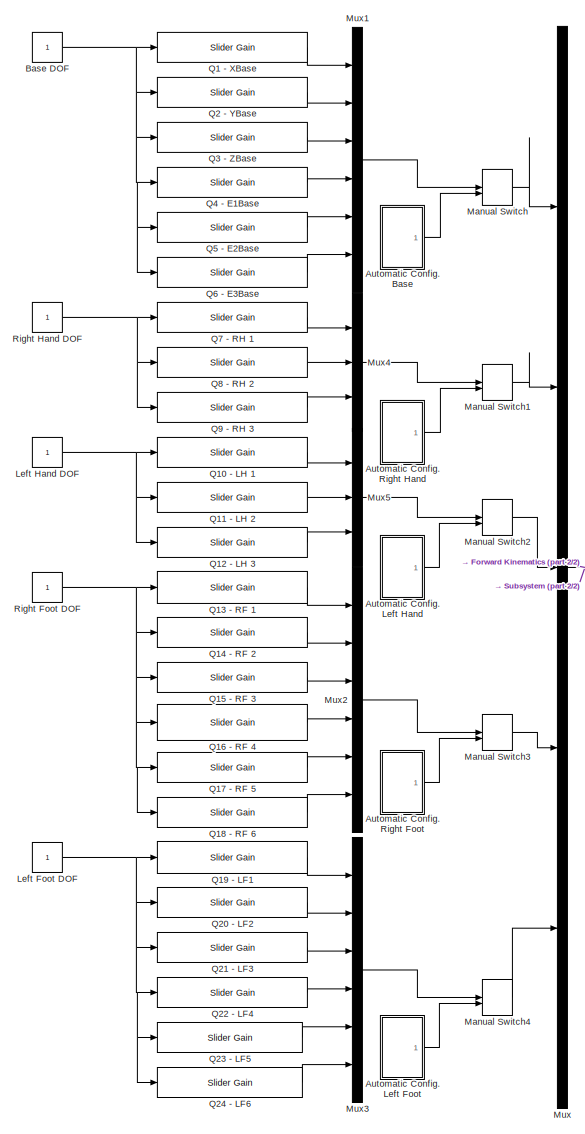
[diagram: root canvas - part 1/2, left side, full height]
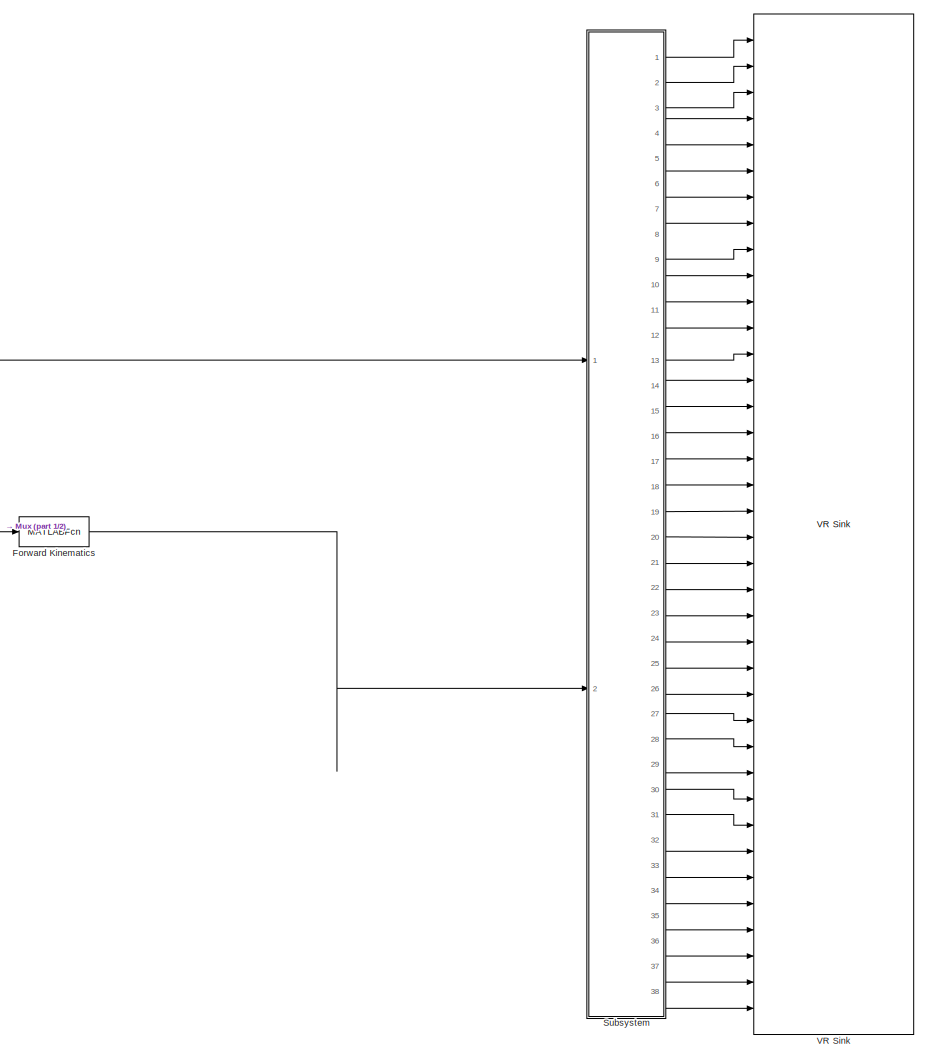
[diagram: root canvas - part 2/2, right side, full height]
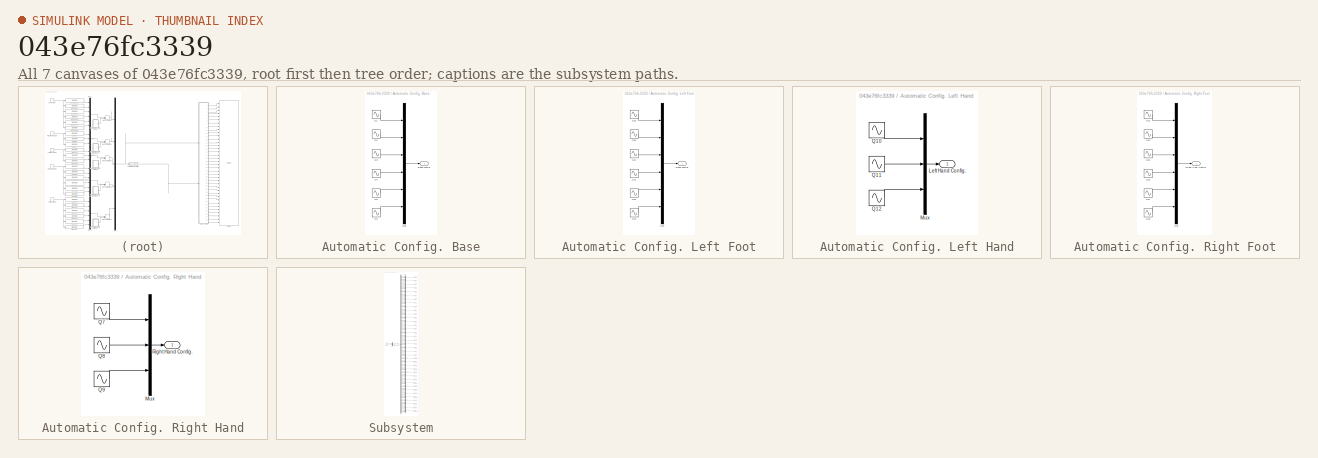
[diagram: thumbnail index - all 7 canvases of the model, root first then tree order]
MODEL slx_043e76fc3339
KIND model
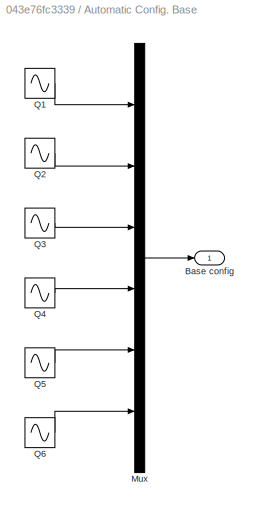
BLOCK [SubSystem] Automatic Config. Base
  FunctionWithSeparateData = off
  MaskHideContents = off
  MinAlgLoopOccurrences = off
  Opaque = off
  Ports = [0, 1]
  PropExecContextOutsideSubsystem = off
  RTWSystemCode = Auto
  RequestExecContextInheritance = off
BLOCK [Outport] Automatic Config. Base/Base config
  IconDisplay = Port number
BLOCK [Mux] Automatic Config. Base/Mux
  DisplayOption = bar
  Inputs = 6
  Ports = [6, 1]
BLOCK [Sin] Automatic Config. Base/Q1
  Amplitude = 3.14
  Frequency = .1
  Ports = [0, 1]
  SampleTime = 0
BLOCK [Sin] Automatic Config. Base/Q2
  Amplitude = 3.14
  Frequency = .4
  Ports = [0, 1]
  SampleTime = 0
BLOCK [Sin] Automatic Config. Base/Q3
  Amplitude = 3.14
  Frequency = .8
  Ports = [0, 1]
  SampleTime = 0
BLOCK [Sin] Automatic Config. Base/Q4
  Amplitude = 3.14
  Frequency = .1
  Ports = [0, 1]
  SampleTime = 0
BLOCK [Sin] Automatic Config. Base/Q5
  Amplitude = 3.14
  Frequency = .2
  Ports = [0, 1]
  SampleTime = 0
BLOCK [Sin] Automatic Config. Base/Q6
  Amplitude = 3.14
  Frequency = .6
  Ports = [0, 1]
  SampleTime = 0
BLOCK [SubSystem] Automatic Config. Left Foot
  FunctionWithSeparateData = off
  MaskHideContents = off
  MinAlgLoopOccurrences = off
  Opaque = off
  Ports = [0, 1]
  PropExecContextOutsideSubsystem = off
  RTWSystemCode = Auto
  RequestExecContextInheritance = off
BLOCK [Outport] Automatic Config. Left Foot/Base config
  IconDisplay = Port number
BLOCK [Mux] Automatic Config. Left Foot/Mux
  DisplayOption = bar
  Inputs = 6
  Ports = [6, 1]
BLOCK [Sin] Automatic Config. Left Foot/Q19
  Amplitude = 6.28
  Ports = [0, 1]
  SampleTime = 0
BLOCK [Sin] Automatic Config. Left Foot/Q20
  Amplitude = 6.28
  Frequency = .1
  Ports = [0, 1]
  SampleTime = 0
BLOCK [Sin] Automatic Config. Left Foot/Q21
  Amplitude = 6.28
  Frequency = .5
  Ports = [0, 1]
  SampleTime = 0
BLOCK [Sin] Automatic Config. Left Foot/Q22
  Amplitude = 6.28
  Frequency = .5
  Ports = [0, 1]
  SampleTime = 0
BLOCK [Sin] Automatic Config. Left Foot/Q23
  Amplitude = 6.28
  Ports = [0, 1]
  SampleTime = 0
BLOCK [Sin] Automatic Config. Left Foot/Q24
  Amplitude = 6.28
  Frequency = .1
  Ports = [0, 1]
  SampleTime = 0
BLOCK [SubSystem] Automatic Config. Left Hand
  FunctionWithSeparateData = off
  MaskHideContents = off
  MinAlgLoopOccurrences = off
  Opaque = off
  Ports = [0, 1]
  PropExecContextOutsideSubsystem = off
  RTWSystemCode = Auto
  RequestExecContextInheritance = off
BLOCK [Outport] Automatic Config. Left Hand/Left Hand Config.
  IconDisplay = Port number
BLOCK [Mux] Automatic Config. Left Hand/Mux
  DisplayOption = bar
  Inputs = 3
  Ports = [3, 1]
BLOCK [Sin] Automatic Config. Left Hand/Q10
  Amplitude = 6.28
  Ports = [0, 1]
  SampleTime = 0
BLOCK [Sin] Automatic Config. Left Hand/Q11
  Amplitude = 6.28
  Frequency = .5
  Ports = [0, 1]
  SampleTime = 0
BLOCK [Sin] Automatic Config. Left Hand/Q12
  Amplitude = 6.28
  Frequency = .1
  Ports = [0, 1]
  SampleTime = 0
BLOCK [SubSystem] Automatic Config. Right Foot
  FunctionWithSeparateData = off
  MaskHideContents = off
  MinAlgLoopOccurrences = off
  Opaque = off
  Ports = [0, 1]
  PropExecContextOutsideSubsystem = off
  RTWSystemCode = Auto
  RequestExecContextInheritance = off
BLOCK [Mux] Automatic Config. Right Foot/Mux
  DisplayOption = bar
  Inputs = 6
  Ports = [6, 1]
BLOCK [Sin] Automatic Config. Right Foot/Q13
  Amplitude = 6.28
  Frequency = .1
  Ports = [0, 1]
  SampleTime = 0
BLOCK [Sin] Automatic Config. Right Foot/Q14
  Amplitude = 6.28
  Frequency = .5
  Ports = [0, 1]
  SampleTime = 0
BLOCK [Sin] Automatic Config. Right Foot/Q15
  Amplitude = 6.28
  Ports = [0, 1]
  SampleTime = 0
BLOCK [Sin] Automatic Config. Right Foot/Q16
  Amplitude = 6.28
  Frequency = .1
  Ports = [0, 1]
  SampleTime = 0
BLOCK [Sin] Automatic Config. Right Foot/Q17
  Amplitude = 6.28
  Frequency = .5
  Ports = [0, 1]
  SampleTime = 0
BLOCK [Sin] Automatic Config. Right Foot/Q18
  Amplitude = 6.28
  Ports = [0, 1]
  SampleTime = 0
BLOCK [Outport] Automatic Config. Right Foot/Right Foot Config
  IconDisplay = Port number
BLOCK [SubSystem] Automatic Config. Right Hand
  FunctionWithSeparateData = off
  MaskHideContents = off
  MinAlgLoopOccurrences = off
  Opaque = off
  Ports = [0, 1]
  PropExecContextOutsideSubsystem = off
  RTWSystemCode = Auto
  RequestExecContextInheritance = off
BLOCK [Mux] Automatic Config. Right Hand/Mux
  DisplayOption = bar
  Inputs = 3
  Ports = [3, 1]
BLOCK [Sin] Automatic Config. Right Hand/Q7
  Amplitude = 6.28
  Frequency = .1
  Ports = [0, 1]
  SampleTime = 0
BLOCK [Sin] Automatic Config. Right Hand/Q8
  Amplitude = 6.28
  Frequency = .5
  Ports = [0, 1]
  SampleTime = 0
BLOCK [Sin] Automatic Config. Right Hand/Q9
  Amplitude = 6.28
  Ports = [0, 1]
  SampleTime = 0
BLOCK [Outport] Automatic Config. Right Hand/Right Hand Config.
  IconDisplay = Port number
BLOCK [Constant] Base DOF
BLOCK [MATLABFcn] Forward Kinematics
  MATLABFcn = ToSimulink_Bioloid_FK_ST(u)
  Ports = [1, 1]
BLOCK [Constant] Left Foot DOF
BLOCK [Constant] Left Hand DOF
BLOCK [ManualSwitch] Manual Switch
  CurrentSetting = 0
BLOCK [ManualSwitch] Manual Switch1
  CurrentSetting = 0
BLOCK [ManualSwitch] Manual Switch2
  CurrentSetting = 0
BLOCK [ManualSwitch] Manual Switch3
  CurrentSetting = 0
BLOCK [ManualSwitch] Manual Switch4
  CurrentSetting = 0
BLOCK [Mux] Mux
  DisplayOption = bar
  Inputs = 5
  Ports = [5, 1]
BLOCK [Mux] Mux1
  DisplayOption = bar
  Inputs = 6
  Ports = [6, 1]
BLOCK [Mux] Mux2
  DisplayOption = bar
  Inputs = 6
  Ports = [6, 1]
BLOCK [Mux] Mux3
  DisplayOption = bar
  Inputs = 6
  Ports = [6, 1]
BLOCK [Mux] Mux4
  DisplayOption = bar
  Inputs = 3
  Ports = [3, 1]
BLOCK [Mux] Mux5
  DisplayOption = bar
  Inputs = 3
  Ports = [3, 1]
BLOCK [Reference] Q1 - XBase   REF=simulink/Math
Operations/Slider
Gain
  Ports = [1, 1]
  SourceBlock = simulink/Math\nOperations/Slider\nGain
  SourceType = Slider Gain
  gain = 0
  high = 6.28
  low = -6.28
BLOCK [Reference] Q10 - LH 1  REF=simulink/Math
Operations/Slider
Gain
  Ports = [1, 1]
  SourceBlock = simulink/Math\nOperations/Slider\nGain
  SourceType = Slider Gain
  gain = 0
  high = 6.28
  low = -6.28
BLOCK [Reference] Q11 - LH 2   REF=simulink/Math
Operations/Slider
Gain
  Ports = [1, 1]
  SourceBlock = simulink/Math\nOperations/Slider\nGain
  SourceType = Slider Gain
  gain = 0
  high = 6.28
  low = -6.28
BLOCK [Reference] Q12 - LH 3  REF=simulink/Math
Operations/Slider
Gain
  Ports = [1, 1]
  SourceBlock = simulink/Math\nOperations/Slider\nGain
  SourceType = Slider Gain
  gain = 0
  high = 6.28
  low = -6.28
BLOCK [Reference] Q13 - RF 1  REF=simulink/Math
Operations/Slider
Gain
  Ports = [1, 1]
  SourceBlock = simulink/Math\nOperations/Slider\nGain
  SourceType = Slider Gain
  gain = 0
  high = 6.28
  low = -6.28
BLOCK [Reference] Q14 - RF 2  REF=simulink/Math
Operations/Slider
Gain
  Ports = [1, 1]
  SourceBlock = simulink/Math\nOperations/Slider\nGain
  SourceType = Slider Gain
  gain = 0
  high = 6.28
  low = -6.28
BLOCK [Reference] Q15 - RF 3  REF=simulink/Math
Operations/Slider
Gain
  Ports = [1, 1]
  SourceBlock = simulink/Math\nOperations/Slider\nGain
  SourceType = Slider Gain
  gain = 0
  high = 6.28
  low = -6.28
BLOCK [Reference] Q16 - RF 4  REF=simulink/Math
Operations/Slider
Gain
  Ports = [1, 1]
  SourceBlock = simulink/Math\nOperations/Slider\nGain
  SourceType = Slider Gain
  gain = 0
  high = 6.28
  low = -6.28
BLOCK [Reference] Q17 - RF 5  REF=simulink/Math
Operations/Slider
Gain
  Ports = [1, 1]
  SourceBlock = simulink/Math\nOperations/Slider\nGain
  SourceType = Slider Gain
  gain = 0
  high = 6.28
  low = -6.28
BLOCK [Reference] Q18 - RF 6  REF=simulink/Math
Operations/Slider
Gain
  Ports = [1, 1]
  SourceBlock = simulink/Math\nOperations/Slider\nGain
  SourceType = Slider Gain
  gain = 0
  high = 6.28
  low = -6.28
BLOCK [Reference] Q19 - LF1  REF=simulink/Math
Operations/Slider
Gain
  Ports = [1, 1]
  SourceBlock = simulink/Math\nOperations/Slider\nGain
  SourceType = Slider Gain
  gain = 0
  high = 6.28
  low = -6.28
BLOCK [Reference] Q2 - YBase   REF=simulink/Math
Operations/Slider
Gain
  Ports = [1, 1]
  SourceBlock = simulink/Math\nOperations/Slider\nGain
  SourceType = Slider Gain
  gain = 0
  high = 6.28
  low = -6.28
BLOCK [Reference] Q20 - LF2  REF=simulink/Math
Operations/Slider
Gain
  Ports = [1, 1]
  SourceBlock = simulink/Math\nOperations/Slider\nGain
  SourceType = Slider Gain
  gain = 0
  high = 6.28
  low = -6.28
BLOCK [Reference] Q21 - LF3  REF=simulink/Math
Operations/Slider
Gain
  Ports = [1, 1]
  SourceBlock = simulink/Math\nOperations/Slider\nGain
  SourceType = Slider Gain
  gain = 0
  high = 6.28
  low = -6.28
BLOCK [Reference] Q22 - LF4  REF=simulink/Math
Operations/Slider
Gain
  Ports = [1, 1]
  SourceBlock = simulink/Math\nOperations/Slider\nGain
  SourceType = Slider Gain
  gain = 0
  high = 6.28
  low = -6.28
BLOCK [Reference] Q23 - LF5  REF=simulink/Math
Operations/Slider
Gain
  Ports = [1, 1]
  SourceBlock = simulink/Math\nOperations/Slider\nGain
  SourceType = Slider Gain
  gain = 0
  high = 6.28
  low = -6.28
BLOCK [Reference] Q24 - LF6  REF=simulink/Math
Operations/Slider
Gain
  Ports = [1, 1]
  SourceBlock = simulink/Math\nOperations/Slider\nGain
  SourceType = Slider Gain
  gain = 0
  high = 6.28
  low = -6.28
BLOCK [Reference] Q3 - ZBase   REF=simulink/Math
Operations/Slider
Gain
  Ports = [1, 1]
  SourceBlock = simulink/Math\nOperations/Slider\nGain
  SourceType = Slider Gain
  gain = 0
  high = 6.28
  low = -6.28
BLOCK [Reference] Q4 - E1Base   REF=simulink/Math
Operations/Slider
Gain
  Ports = [1, 1]
  SourceBlock = simulink/Math\nOperations/Slider\nGain
  SourceType = Slider Gain
  gain = 0
  high = 6.28
  low = -6.28
BLOCK [Reference] Q5 - E2Base   REF=simulink/Math
Operations/Slider
Gain
  Ports = [1, 1]
  SourceBlock = simulink/Math\nOperations/Slider\nGain
  SourceType = Slider Gain
  gain = 0
  high = 6.28
  low = -6.28
BLOCK [Reference] Q6 - E3Base  REF=simulink/Math
Operations/Slider
Gain
  Ports = [1, 1]
  SourceBlock = simulink/Math\nOperations/Slider\nGain
  SourceType = Slider Gain
  gain = 0
  high = 6.28
  low = -6.28
BLOCK [Reference] Q7 - RH 1  REF=simulink/Math
Operations/Slider
Gain
  Ports = [1, 1]
  SourceBlock = simulink/Math\nOperations/Slider\nGain
  SourceType = Slider Gain
  gain = 0
  high = 6.28
  low = -6.28
BLOCK [Reference] Q8 - RH 2  REF=simulink/Math
Operations/Slider
Gain
  Ports = [1, 1]
  SourceBlock = simulink/Math\nOperations/Slider\nGain
  SourceType = Slider Gain
  gain = 0
  high = 6.28
  low = -6.28
BLOCK [Reference] Q9 - RH 3   REF=simulink/Math
Operations/Slider
Gain
  Ports = [1, 1]
  SourceBlock = simulink/Math\nOperations/Slider\nGain
  SourceType = Slider Gain
  gain = 0
  high = 6.28
  low = -6.28
BLOCK [Constant] Right Foot DOF
BLOCK [Constant] Right Hand DOF
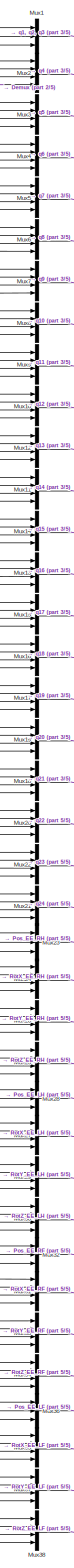
[diagram: Subsystem - part 1/5, center side, full height]
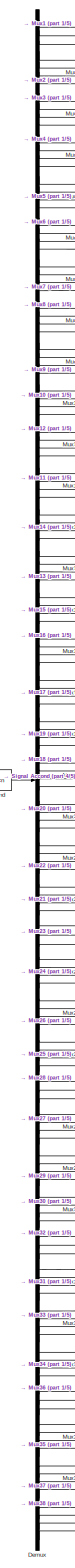
[diagram: Subsystem - part 2/5, center side, full height]
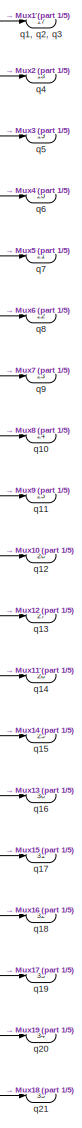
[diagram: Subsystem - part 3/5, top right region]
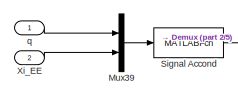
[diagram: Subsystem - part 4/5, middle left region]
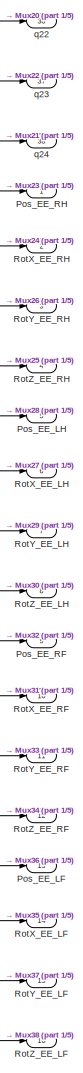
[diagram: Subsystem - part 5/5, bottom right region]
BLOCK [SubSystem] Subsystem
  FunctionWithSeparateData = off
  MaskHideContents = off
  MinAlgLoopOccurrences = off
  Opaque = off
  Ports = [2, 38]
  PropExecContextOutsideSubsystem = off
  RTWSystemCode = Auto
  RequestExecContextInheritance = off
BLOCK [Demux] Subsystem/Demux
  DisplayOption = bar
  Outputs = 147
  Ports = [1, 147]
BLOCK [Mux] Subsystem/Mux1
  DisplayOption = bar
  Inputs = 3
  Ports = [3, 1]
BLOCK [Mux] Subsystem/Mux10
  DisplayOption = bar
  Ports = [4, 1]
BLOCK [Mux] Subsystem/Mux11
  DisplayOption = bar
  Ports = [4, 1]
BLOCK [Mux] Subsystem/Mux12
  DisplayOption = bar
  Ports = [4, 1]
BLOCK [Mux] Subsystem/Mux13
  DisplayOption = bar
  Ports = [4, 1]
BLOCK [Mux] Subsystem/Mux14
  DisplayOption = bar
  Ports = [4, 1]
BLOCK [Mux] Subsystem/Mux15
  DisplayOption = bar
  Ports = [4, 1]
BLOCK [Mux] Subsystem/Mux16
  DisplayOption = bar
  Ports = [4, 1]
BLOCK [Mux] Subsystem/Mux17
  DisplayOption = bar
  Ports = [4, 1]
BLOCK [Mux] Subsystem/Mux18
  DisplayOption = bar
  Ports = [4, 1]
BLOCK [Mux] Subsystem/Mux19
  DisplayOption = bar
  Ports = [4, 1]
BLOCK [Mux] Subsystem/Mux2
  DisplayOption = bar
  Ports = [4, 1]
BLOCK [Mux] Subsystem/Mux20
  DisplayOption = bar
  Ports = [4, 1]
BLOCK [Mux] Subsystem/Mux21
  DisplayOption = bar
  Ports = [4, 1]
BLOCK [Mux] Subsystem/Mux22
  DisplayOption = bar
  Ports = [4, 1]
BLOCK [Mux] Subsystem/Mux23
  DisplayOption = bar
  Inputs = 3
  Ports = [3, 1]
BLOCK [Mux] Subsystem/Mux24
  DisplayOption = bar
  Ports = [4, 1]
BLOCK [Mux] Subsystem/Mux25
  DisplayOption = bar
  Ports = [4, 1]
BLOCK [Mux] Subsystem/Mux26
  DisplayOption = bar
  Ports = [4, 1]
BLOCK [Mux] Subsystem/Mux27
  DisplayOption = bar
  Ports = [4, 1]
BLOCK [Mux] Subsystem/Mux28
  DisplayOption = bar
  Inputs = 3
  Ports = [3, 1]
BLOCK [Mux] Subsystem/Mux29
  DisplayOption = bar
  Ports = [4, 1]
BLOCK [Mux] Subsystem/Mux3
  DisplayOption = bar
  Ports = [4, 1]
BLOCK [Mux] Subsystem/Mux30
  DisplayOption = bar
  Ports = [4, 1]
BLOCK [Mux] Subsystem/Mux31
  DisplayOption = bar
  Ports = [4, 1]
BLOCK [Mux] Subsystem/Mux32
  DisplayOption = bar
  Inputs = 3
  Ports = [3, 1]
BLOCK [Mux] Subsystem/Mux33
  DisplayOption = bar
  Ports = [4, 1]
BLOCK [Mux] Subsystem/Mux34
  DisplayOption = bar
  Ports = [4, 1]
BLOCK [Mux] Subsystem/Mux35
  DisplayOption = bar
  Ports = [4, 1]
BLOCK [Mux] Subsystem/Mux36
  DisplayOption = bar
  Inputs = 3
  Ports = [3, 1]
BLOCK [Mux] Subsystem/Mux37
  DisplayOption = bar
  Ports = [4, 1]
BLOCK [Mux] Subsystem/Mux38
  DisplayOption = bar
  Ports = [4, 1]
BLOCK [Mux] Subsystem/Mux39
  DisplayOption = bar
  Inputs = 2
  Ports = [2, 1]
BLOCK [Mux] Subsystem/Mux4
  DisplayOption = bar
  Ports = [4, 1]
BLOCK [Mux] Subsystem/Mux5
  DisplayOption = bar
  Ports = [4, 1]
BLOCK [Mux] Subsystem/Mux6
  DisplayOption = bar
  Ports = [4, 1]
BLOCK [Mux] Subsystem/Mux7
  DisplayOption = bar
  Ports = [4, 1]
BLOCK [Mux] Subsystem/Mux8
  DisplayOption = bar
  Ports = [4, 1]
BLOCK [Mux] Subsystem/Mux9
  DisplayOption = bar
  Ports = [4, 1]
BLOCK [Outport] Subsystem/Pos_EE_LF
  IconDisplay = Port number
  Port = 13
BLOCK [Outport] Subsystem/Pos_EE_LH
  IconDisplay = Port number
  Port = 5
BLOCK [Outport] Subsystem/Pos_EE_RF
  IconDisplay = Port number
  Port = 9
BLOCK [Outport] Subsystem/Pos_EE_RH
  IconDisplay = Port number
BLOCK [Outport] Subsystem/RotX_EE_LF
  IconDisplay = Port number
  Port = 14
BLOCK [Outport] Subsystem/RotX_EE_LH
  IconDisplay = Port number
  Port = 6
BLOCK [Outport] Subsystem/RotX_EE_RF
  IconDisplay = Port number
  Port = 10
BLOCK [Outport] Subsystem/RotX_EE_RH
  IconDisplay = Port number
  Port = 2
BLOCK [Outport] Subsystem/RotY_EE_LF
  IconDisplay = Port number
  Port = 15
BLOCK [Outport] Subsystem/RotY_EE_LH
  IconDisplay = Port number
  Port = 7
BLOCK [Outport] Subsystem/RotY_EE_RF
  IconDisplay = Port number
  Port = 11
BLOCK [Outport] Subsystem/RotY_EE_RH
  IconDisplay = Port number
  Port = 3
BLOCK [Outport] Subsystem/RotZ_EE_LF
  IconDisplay = Port number
  Port = 16
BLOCK [Outport] Subsystem/RotZ_EE_LH
  IconDisplay = Port number
  Port = 8
BLOCK [Outport] Subsystem/RotZ_EE_RF
  IconDisplay = Port number
  Port = 12
BLOCK [Outport] Subsystem/RotZ_EE_RH
  IconDisplay = Port number
  Port = 4
BLOCK [MATLABFcn] Subsystem/Signal Accond
  MATLABFcn = ToSimulink_Bioloid_Signals2VRML(u(1:24),u(25:30),u(31:36),u(37:42),u(43:48))
  Ports = [1, 1]
BLOCK [Inport] Subsystem/Xi_EE
  IconDisplay = Port number
  Port = 2
BLOCK [Inport] Subsystem/q
  IconDisplay = Port number
BLOCK [Outport] Subsystem/q1, q2, q3
  IconDisplay = Port number
  Port = 17
BLOCK [Outport] Subsystem/q10
  IconDisplay = Port number
  Port = 24
BLOCK [Outport] Subsystem/q11
  IconDisplay = Port number
  Port = 25
BLOCK [Outport] Subsystem/q12
  IconDisplay = Port number
  Port = 26
BLOCK [Outport] Subsystem/q13
  IconDisplay = Port number
  Port = 27
BLOCK [Outport] Subsystem/q14
  IconDisplay = Port number
  Port = 28
BLOCK [Outport] Subsystem/q15
  IconDisplay = Port number
  Port = 29
BLOCK [Outport] Subsystem/q16
  IconDisplay = Port number
  Port = 30
BLOCK [Outport] Subsystem/q17
  IconDisplay = Port number
  Port = 31
BLOCK [Outport] Subsystem/q18
  IconDisplay = Port number
  Port = 32
BLOCK [Outport] Subsystem/q19
  IconDisplay = Port number
  Port = 33
BLOCK [Outport] Subsystem/q20
  IconDisplay = Port number
  Port = 34
BLOCK [Outport] Subsystem/q21
  IconDisplay = Port number
  Port = 35
BLOCK [Outport] Subsystem/q22
  IconDisplay = Port number
  Port = 36
BLOCK [Outport] Subsystem/q23
  IconDisplay = Port number
  Port = 37
BLOCK [Outport] Subsystem/q24
  IconDisplay = Port number
  Port = 38
BLOCK [Outport] Subsystem/q4
  IconDisplay = Port number
  Port = 18
BLOCK [Outport] Subsystem/q5 
  IconDisplay = Port number
  Port = 19
BLOCK [Outport] Subsystem/q6
  IconDisplay = Port number
  Port = 20
BLOCK [Outport] Subsystem/q7
  IconDisplay = Port number
  Port = 21
BLOCK [Outport] Subsystem/q8
  IconDisplay = Port number
  Port = 22
BLOCK [Outport] Subsystem/q9
  IconDisplay = Port number
  Port = 23
BLOCK [Reference] VR Sink  REF=vrlib/VR Sink
  AllowVariableSize = off
  AutoView = on
  FieldsWritten = EE_RH_Traslation.translation.3.1.1.double#EE_RH_RotX.rotation.4.1.1.double#EE_RH_RotY.rotation.4.1.1.double#EE_RH_RotZ.rotation.4.1.1.double#EE_LH_Traslation.translation.3.1.1.double#EE_LH_RotX.rotation.4.1.1.double#EE_LH_RotY.rotation.4.1.1.double#EE_LH_RotZ.rotation.4.1.1.double#EE_RF_Traslation.translation.3.1.1.double#EE_RF_RotX.rotation.4.1.1.double#EE_RF_RotY.rotation.4.1.1.double#EE_RF_RotZ...<+909ch>
  InstantiateOnLoad = on
  Ports = [38]
  RemoteChange = off
  RemoteView = off
  SampleTime = 0.1
  SourceBlock = vrlib/VR Sink
  SourceType = Virtual Reality Sink
  VideoDimensions = []
  ViewEnable = on
  WorldFileName = Bioloid (Fisico White_Background).WRL
LINE Automatic Config. Base/Mux:1 -> Automatic Config. Base/Base config:1
LINE Automatic Config. Base/Q1:1 -> Automatic Config. Base/Mux:1
LINE Automatic Config. Base/Q2:1 -> Automatic Config. Base/Mux:2
LINE Automatic Config. Base/Q3:1 -> Automatic Config. Base/Mux:3
LINE Automatic Config. Base/Q4:1 -> Automatic Config. Base/Mux:4
LINE Automatic Config. Base/Q5:1 -> Automatic Config. Base/Mux:5
LINE Automatic Config. Base/Q6:1 -> Automatic Config. Base/Mux:6
LINE Automatic Config. Base:1 -> Manual Switch:2
LINE Automatic Config. Left Foot/Mux:1 -> Automatic Config. Left Foot/Base config:1
LINE Automatic Config. Left Foot/Q19:1 -> Automatic Config. Left Foot/Mux:1
LINE Automatic Config. Left Foot/Q20:1 -> Automatic Config. Left Foot/Mux:2
LINE Automatic Config. Left Foot/Q21:1 -> Automatic Config. Left Foot/Mux:3
LINE Automatic Config. Left Foot/Q22:1 -> Automatic Config. Left Foot/Mux:4
LINE Automatic Config. Left Foot/Q23:1 -> Automatic Config. Left Foot/Mux:5
LINE Automatic Config. Left Foot/Q24:1 -> Automatic Config. Left Foot/Mux:6
LINE Automatic Config. Left Foot:1 -> Manual Switch4:2
LINE Automatic Config. Left Hand/Mux:1 -> Automatic Config. Left Hand/Left Hand Config.:1
LINE Automatic Config. Left Hand/Q10:1 -> Automatic Config. Left Hand/Mux:1
LINE Automatic Config. Left Hand/Q11:1 -> Automatic Config. Left Hand/Mux:2
LINE Automatic Config. Left Hand/Q12:1 -> Automatic Config. Left Hand/Mux:3
LINE Automatic Config. Left Hand:1 -> Manual Switch2:2
LINE Automatic Config. Right Foot/Mux:1 -> Automatic Config. Right Foot/Right Foot Config:1
LINE Automatic Config. Right Foot/Q13:1 -> Automatic Config. Right Foot/Mux:1
LINE Automatic Config. Right Foot/Q14:1 -> Automatic Config. Right Foot/Mux:2
LINE Automatic Config. Right Foot/Q15:1 -> Automatic Config. Right Foot/Mux:3
LINE Automatic Config. Right Foot/Q16:1 -> Automatic Config. Right Foot/Mux:4
LINE Automatic Config. Right Foot/Q17:1 -> Automatic Config. Right Foot/Mux:5
LINE Automatic Config. Right Foot/Q18:1 -> Automatic Config. Right Foot/Mux:6
LINE Automatic Config. Right Foot:1 -> Manual Switch3:2
LINE Automatic Config. Right Hand/Mux:1 -> Automatic Config. Right Hand/Right Hand Config.:1
LINE Automatic Config. Right Hand/Q7:1 -> Automatic Config. Right Hand/Mux:1
LINE Automatic Config. Right Hand/Q8:1 -> Automatic Config. Right Hand/Mux:2
LINE Automatic Config. Right Hand/Q9:1 -> Automatic Config. Right Hand/Mux:3
LINE Automatic Config. Right Hand:1 -> Manual Switch1:2
NET Base DOF:1 -> Q1 - XBase :1, Q2 - YBase :1, Q3 - ZBase :1, Q4 - E1Base :1, Q5 - E2Base :1, Q6 - E3Base:1
LINE Forward Kinematics:1 -> Subsystem:2
NET Left Foot DOF:1 -> Q19 - LF1:1, Q20 - LF2:1, Q21 - LF3:1, Q22 - LF4:1, Q23 - LF5:1, Q24 - LF6:1
NET Left Hand DOF:1 -> Q10 - LH 1:1, Q11 - LH 2 :1, Q12 - LH 3:1
LINE Manual Switch1:1 -> Mux:2
LINE Manual Switch2:1 -> Mux:3
LINE Manual Switch3:1 -> Mux:4
LINE Manual Switch4:1 -> Mux:5
LINE Manual Switch:1 -> Mux:1
LINE Mux1:1 -> Manual Switch:1
LINE Mux2:1 -> Manual Switch3:1
LINE Mux3:1 -> Manual Switch4:1
LINE Mux4:1 -> Manual Switch1:1
LINE Mux5:1 -> Manual Switch2:1
NET Mux:1 -> Forward Kinematics:1, Subsystem:1
LINE Q1 - XBase :1 -> Mux1:1
LINE Q10 - LH 1:1 -> Mux5:1
LINE Q11 - LH 2 :1 -> Mux5:2
LINE Q12 - LH 3:1 -> Mux5:3
LINE Q13 - RF 1:1 -> Mux2:1
LINE Q14 - RF 2:1 -> Mux2:2
LINE Q15 - RF 3:1 -> Mux2:3
LINE Q16 - RF 4:1 -> Mux2:4
LINE Q17 - RF 5:1 -> Mux2:5
LINE Q18 - RF 6:1 -> Mux2:6
LINE Q19 - LF1:1 -> Mux3:1
LINE Q2 - YBase :1 -> Mux1:2
LINE Q20 - LF2:1 -> Mux3:2
LINE Q21 - LF3:1 -> Mux3:3
LINE Q22 - LF4:1 -> Mux3:4
LINE Q23 - LF5:1 -> Mux3:5
LINE Q24 - LF6:1 -> Mux3:6
LINE Q3 - ZBase :1 -> Mux1:3
LINE Q4 - E1Base :1 -> Mux1:4
LINE Q5 - E2Base :1 -> Mux1:5
LINE Q6 - E3Base:1 -> Mux1:6
LINE Q7 - RH 1:1 -> Mux4:1
LINE Q8 - RH 2:1 -> Mux4:2
LINE Q9 - RH 3 :1 -> Mux4:3
NET Right Foot DOF:1 -> Q13 - RF 1:1, Q14 - RF 2:1, Q15 - RF 3:1, Q16 - RF 4:1, Q17 - RF 5:1, Q18 - RF 6:1
NET Right Hand DOF:1 -> Q7 - RH 1:1, Q8 - RH 2:1, Q9 - RH 3 :1
LINE Subsystem/Demux:1 -> Subsystem/Mux1:1
LINE Subsystem/Demux:10 -> Subsystem/Mux3:3
LINE Subsystem/Demux:100 -> Subsystem/Mux25:2
LINE Subsystem/Demux:101 -> Subsystem/Mux25:3
LINE Subsystem/Demux:102 -> Subsystem/Mux25:4
LINE Subsystem/Demux:103 -> Subsystem/Mux28:1
LINE Subsystem/Demux:104 -> Subsystem/Mux28:2
LINE Subsystem/Demux:105 -> Subsystem/Mux28:3
LINE Subsystem/Demux:106 -> Subsystem/Mux27:1
LINE Subsystem/Demux:107 -> Subsystem/Mux27:2
LINE Subsystem/Demux:108 -> Subsystem/Mux27:3
LINE Subsystem/Demux:109 -> Subsystem/Mux27:4
LINE Subsystem/Demux:11 -> Subsystem/Mux3:4
LINE Subsystem/Demux:110 -> Subsystem/Mux29:1
LINE Subsystem/Demux:111 -> Subsystem/Mux29:2
LINE Subsystem/Demux:112 -> Subsystem/Mux29:3
LINE Subsystem/Demux:113 -> Subsystem/Mux29:4
LINE Subsystem/Demux:114 -> Subsystem/Mux30:1
LINE Subsystem/Demux:115 -> Subsystem/Mux30:2
LINE Subsystem/Demux:116 -> Subsystem/Mux30:3
LINE Subsystem/Demux:117 -> Subsystem/Mux30:4
LINE Subsystem/Demux:118 -> Subsystem/Mux32:1
LINE Subsystem/Demux:119 -> Subsystem/Mux32:2
LINE Subsystem/Demux:12 -> Subsystem/Mux4:1
LINE Subsystem/Demux:120 -> Subsystem/Mux32:3
LINE Subsystem/Demux:121 -> Subsystem/Mux31:1
LINE Subsystem/Demux:122 -> Subsystem/Mux31:2
LINE Subsystem/Demux:123 -> Subsystem/Mux31:3
LINE Subsystem/Demux:124 -> Subsystem/Mux31:4
LINE Subsystem/Demux:125 -> Subsystem/Mux33:1
LINE Subsystem/Demux:126 -> Subsystem/Mux33:2
LINE Subsystem/Demux:127 -> Subsystem/Mux33:3
LINE Subsystem/Demux:128 -> Subsystem/Mux33:4
LINE Subsystem/Demux:129 -> Subsystem/Mux34:1
LINE Subsystem/Demux:13 -> Subsystem/Mux4:2
LINE Subsystem/Demux:130 -> Subsystem/Mux34:2
LINE Subsystem/Demux:131 -> Subsystem/Mux34:3
LINE Subsystem/Demux:132 -> Subsystem/Mux34:4
LINE Subsystem/Demux:133 -> Subsystem/Mux36:1
LINE Subsystem/Demux:134 -> Subsystem/Mux36:2
LINE Subsystem/Demux:135 -> Subsystem/Mux36:3
LINE Subsystem/Demux:136 -> Subsystem/Mux35:1
LINE Subsystem/Demux:137 -> Subsystem/Mux35:2
LINE Subsystem/Demux:138 -> Subsystem/Mux35:3
LINE Subsystem/Demux:139 -> Subsystem/Mux35:4
LINE Subsystem/Demux:14 -> Subsystem/Mux4:3
LINE Subsystem/Demux:140 -> Subsystem/Mux37:1
LINE Subsystem/Demux:141 -> Subsystem/Mux37:2
LINE Subsystem/Demux:142 -> Subsystem/Mux37:3
LINE Subsystem/Demux:143 -> Subsystem/Mux37:4
LINE Subsystem/Demux:144 -> Subsystem/Mux38:1
LINE Subsystem/Demux:145 -> Subsystem/Mux38:2
LINE Subsystem/Demux:146 -> Subsystem/Mux38:3
LINE Subsystem/Demux:147 -> Subsystem/Mux38:4
LINE Subsystem/Demux:15 -> Subsystem/Mux4:4
LINE Subsystem/Demux:16 -> Subsystem/Mux5:1
LINE Subsystem/Demux:17 -> Subsystem/Mux5:2
LINE Subsystem/Demux:18 -> Subsystem/Mux5:3
LINE Subsystem/Demux:19 -> Subsystem/Mux5:4
LINE Subsystem/Demux:2 -> Subsystem/Mux1:2
LINE Subsystem/Demux:20 -> Subsystem/Mux6:1
LINE Subsystem/Demux:21 -> Subsystem/Mux6:2
LINE Subsystem/Demux:22 -> Subsystem/Mux6:3
LINE Subsystem/Demux:23 -> Subsystem/Mux6:4
LINE Subsystem/Demux:24 -> Subsystem/Mux7:1
LINE Subsystem/Demux:25 -> Subsystem/Mux7:2
LINE Subsystem/Demux:26 -> Subsystem/Mux7:3
LINE Subsystem/Demux:27 -> Subsystem/Mux7:4
LINE Subsystem/Demux:28 -> Subsystem/Mux8:1
LINE Subsystem/Demux:29 -> Subsystem/Mux8:2
LINE Subsystem/Demux:3 -> Subsystem/Mux1:3
LINE Subsystem/Demux:30 -> Subsystem/Mux8:3
LINE Subsystem/Demux:31 -> Subsystem/Mux8:4
LINE Subsystem/Demux:32 -> Subsystem/Mux9:1
LINE Subsystem/Demux:33 -> Subsystem/Mux9:2
LINE Subsystem/Demux:34 -> Subsystem/Mux9:3
LINE Subsystem/Demux:35 -> Subsystem/Mux9:4
LINE Subsystem/Demux:36 -> Subsystem/Mux10:1
LINE Subsystem/Demux:37 -> Subsystem/Mux10:2
LINE Subsystem/Demux:38 -> Subsystem/Mux10:3
LINE Subsystem/Demux:39 -> Subsystem/Mux10:4
LINE Subsystem/Demux:4 -> Subsystem/Mux2:1
LINE Subsystem/Demux:40 -> Subsystem/Mux12:1
LINE Subsystem/Demux:41 -> Subsystem/Mux12:2
LINE Subsystem/Demux:42 -> Subsystem/Mux12:3
LINE Subsystem/Demux:43 -> Subsystem/Mux12:4
LINE Subsystem/Demux:44 -> Subsystem/Mux11:1
LINE Subsystem/Demux:45 -> Subsystem/Mux11:2
LINE Subsystem/Demux:46 -> Subsystem/Mux11:3
LINE Subsystem/Demux:47 -> Subsystem/Mux11:4
LINE Subsystem/Demux:48 -> Subsystem/Mux14:1
LINE Subsystem/Demux:49 -> Subsystem/Mux14:2
LINE Subsystem/Demux:5 -> Subsystem/Mux2:2
LINE Subsystem/Demux:50 -> Subsystem/Mux14:3
LINE Subsystem/Demux:51 -> Subsystem/Mux14:4
LINE Subsystem/Demux:52 -> Subsystem/Mux13:1
LINE Subsystem/Demux:53 -> Subsystem/Mux13:2
LINE Subsystem/Demux:54 -> Subsystem/Mux13:3
LINE Subsystem/Demux:55 -> Subsystem/Mux13:4
LINE Subsystem/Demux:56 -> Subsystem/Mux15:1
LINE Subsystem/Demux:57 -> Subsystem/Mux15:2
LINE Subsystem/Demux:58 -> Subsystem/Mux15:3
LINE Subsystem/Demux:59 -> Subsystem/Mux15:4
LINE Subsystem/Demux:6 -> Subsystem/Mux2:3
LINE Subsystem/Demux:60 -> Subsystem/Mux16:1
LINE Subsystem/Demux:61 -> Subsystem/Mux16:2
LINE Subsystem/Demux:62 -> Subsystem/Mux16:3
LINE Subsystem/Demux:63 -> Subsystem/Mux16:4
LINE Subsystem/Demux:64 -> Subsystem/Mux17:1
LINE Subsystem/Demux:65 -> Subsystem/Mux17:2
LINE Subsystem/Demux:66 -> Subsystem/Mux17:3
LINE Subsystem/Demux:67 -> Subsystem/Mux17:4
LINE Subsystem/Demux:68 -> Subsystem/Mux19:1
LINE Subsystem/Demux:69 -> Subsystem/Mux19:2
LINE Subsystem/Demux:7 -> Subsystem/Mux2:4
LINE Subsystem/Demux:70 -> Subsystem/Mux19:3
LINE Subsystem/Demux:71 -> Subsystem/Mux19:4
LINE Subsystem/Demux:72 -> Subsystem/Mux18:1
LINE Subsystem/Demux:73 -> Subsystem/Mux18:2
LINE Subsystem/Demux:74 -> Subsystem/Mux18:3
LINE Subsystem/Demux:75 -> Subsystem/Mux18:4
LINE Subsystem/Demux:76 -> Subsystem/Mux20:1
LINE Subsystem/Demux:77 -> Subsystem/Mux20:2
LINE Subsystem/Demux:78 -> Subsystem/Mux20:3
LINE Subsystem/Demux:79 -> Subsystem/Mux20:4
LINE Subsystem/Demux:8 -> Subsystem/Mux3:1
LINE Subsystem/Demux:80 -> Subsystem/Mux22:1
LINE Subsystem/Demux:81 -> Subsystem/Mux22:2
LINE Subsystem/Demux:82 -> Subsystem/Mux22:3
LINE Subsystem/Demux:83 -> Subsystem/Mux22:4
LINE Subsystem/Demux:84 -> Subsystem/Mux21:1
LINE Subsystem/Demux:85 -> Subsystem/Mux21:2
LINE Subsystem/Demux:86 -> Subsystem/Mux21:3
LINE Subsystem/Demux:87 -> Subsystem/Mux21:4
LINE Subsystem/Demux:88 -> Subsystem/Mux23:1
LINE Subsystem/Demux:89 -> Subsystem/Mux23:2
LINE Subsystem/Demux:9 -> Subsystem/Mux3:2
LINE Subsystem/Demux:90 -> Subsystem/Mux23:3
LINE Subsystem/Demux:91 -> Subsystem/Mux24:1
LINE Subsystem/Demux:92 -> Subsystem/Mux24:2
LINE Subsystem/Demux:93 -> Subsystem/Mux24:3
LINE Subsystem/Demux:94 -> Subsystem/Mux24:4
LINE Subsystem/Demux:95 -> Subsystem/Mux26:1
LINE Subsystem/Demux:96 -> Subsystem/Mux26:2
LINE Subsystem/Demux:97 -> Subsystem/Mux26:3
LINE Subsystem/Demux:98 -> Subsystem/Mux26:4
LINE Subsystem/Demux:99 -> Subsystem/Mux25:1
LINE Subsystem/Mux10:1 -> Subsystem/q12:1
LINE Subsystem/Mux11:1 -> Subsystem/q14:1
LINE Subsystem/Mux12:1 -> Subsystem/q13:1
LINE Subsystem/Mux13:1 -> Subsystem/q16:1
LINE Subsystem/Mux14:1 -> Subsystem/q15:1
LINE Subsystem/Mux15:1 -> Subsystem/q17:1
LINE Subsystem/Mux16:1 -> Subsystem/q18:1
LINE Subsystem/Mux17:1 -> Subsystem/q19:1
LINE Subsystem/Mux18:1 -> Subsystem/q21:1
LINE Subsystem/Mux19:1 -> Subsystem/q20:1
LINE Subsystem/Mux1:1 -> Subsystem/q1, q2, q3:1
LINE Subsystem/Mux20:1 -> Subsystem/q22:1
LINE Subsystem/Mux21:1 -> Subsystem/q24:1
LINE Subsystem/Mux22:1 -> Subsystem/q23:1
LINE Subsystem/Mux23:1 -> Subsystem/Pos_EE_RH:1
LINE Subsystem/Mux24:1 -> Subsystem/RotX_EE_RH:1
LINE Subsystem/Mux25:1 -> Subsystem/RotZ_EE_RH:1
LINE Subsystem/Mux26:1 -> Subsystem/RotY_EE_RH:1
LINE Subsystem/Mux27:1 -> Subsystem/RotX_EE_LH:1
LINE Subsystem/Mux28:1 -> Subsystem/Pos_EE_LH:1
LINE Subsystem/Mux29:1 -> Subsystem/RotY_EE_LH:1
LINE Subsystem/Mux2:1 -> Subsystem/q4:1
LINE Subsystem/Mux30:1 -> Subsystem/RotZ_EE_LH:1
LINE Subsystem/Mux31:1 -> Subsystem/RotX_EE_RF:1
LINE Subsystem/Mux32:1 -> Subsystem/Pos_EE_RF:1
LINE Subsystem/Mux33:1 -> Subsystem/RotY_EE_RF:1
LINE Subsystem/Mux34:1 -> Subsystem/RotZ_EE_RF:1
LINE Subsystem/Mux35:1 -> Subsystem/RotX_EE_LF:1
LINE Subsystem/Mux36:1 -> Subsystem/Pos_EE_LF:1
LINE Subsystem/Mux37:1 -> Subsystem/RotY_EE_LF:1
LINE Subsystem/Mux38:1 -> Subsystem/RotZ_EE_LF:1
LINE Subsystem/Mux39:1 -> Subsystem/Signal Accond:1
LINE Subsystem/Mux3:1 -> Subsystem/q5 :1
LINE Subsystem/Mux4:1 -> Subsystem/q6:1
LINE Subsystem/Mux5:1 -> Subsystem/q7:1
LINE Subsystem/Mux6:1 -> Subsystem/q8:1
LINE Subsystem/Mux7:1 -> Subsystem/q9:1
LINE Subsystem/Mux8:1 -> Subsystem/q10:1
LINE Subsystem/Mux9:1 -> Subsystem/q11:1
LINE Subsystem/Signal Accond:1 -> Subsystem/Demux:1
LINE Subsystem/Xi_EE:1 -> Subsystem/Mux39:2
LINE Subsystem/q:1 -> Subsystem/Mux39:1
LINE Subsystem:1 -> VR Sink:1
LINE Subsystem:10 -> VR Sink:10
LINE Subsystem:11 -> VR Sink:11
LINE Subsystem:12 -> VR Sink:12
LINE Subsystem:13 -> VR Sink:13
LINE Subsystem:14 -> VR Sink:14
LINE Subsystem:15 -> VR Sink:15
LINE Subsystem:16 -> VR Sink:16
LINE Subsystem:17 -> VR Sink:17
LINE Subsystem:18 -> VR Sink:18
LINE Subsystem:19 -> VR Sink:19
LINE Subsystem:2 -> VR Sink:2
LINE Subsystem:20 -> VR Sink:20
LINE Subsystem:21 -> VR Sink:21
LINE Subsystem:22 -> VR Sink:22
LINE Subsystem:23 -> VR Sink:23
LINE Subsystem:24 -> VR Sink:24
LINE Subsystem:25 -> VR Sink:25
LINE Subsystem:26 -> VR Sink:26
LINE Subsystem:27 -> VR Sink:27
LINE Subsystem:28 -> VR Sink:28
LINE Subsystem:29 -> VR Sink:29
LINE Subsystem:3 -> VR Sink:3
LINE Subsystem:30 -> VR Sink:30
LINE Subsystem:31 -> VR Sink:31
LINE Subsystem:32 -> VR Sink:32
LINE Subsystem:33 -> VR Sink:33
LINE Subsystem:34 -> VR Sink:34
LINE Subsystem:35 -> VR Sink:35
LINE Subsystem:36 -> VR Sink:36
LINE Subsystem:37 -> VR Sink:37
LINE Subsystem:38 -> VR Sink:38
LINE Subsystem:4 -> VR Sink:4
LINE Subsystem:5 -> VR Sink:5
LINE Subsystem:6 -> VR Sink:6
LINE Subsystem:7 -> VR Sink:7
LINE Subsystem:8 -> VR Sink:8
LINE Subsystem:9 -> VR Sink:9
note: NET lines group one-source signal fan-out (src -> all destinations, sorted); 1:1 wires keep LINE
